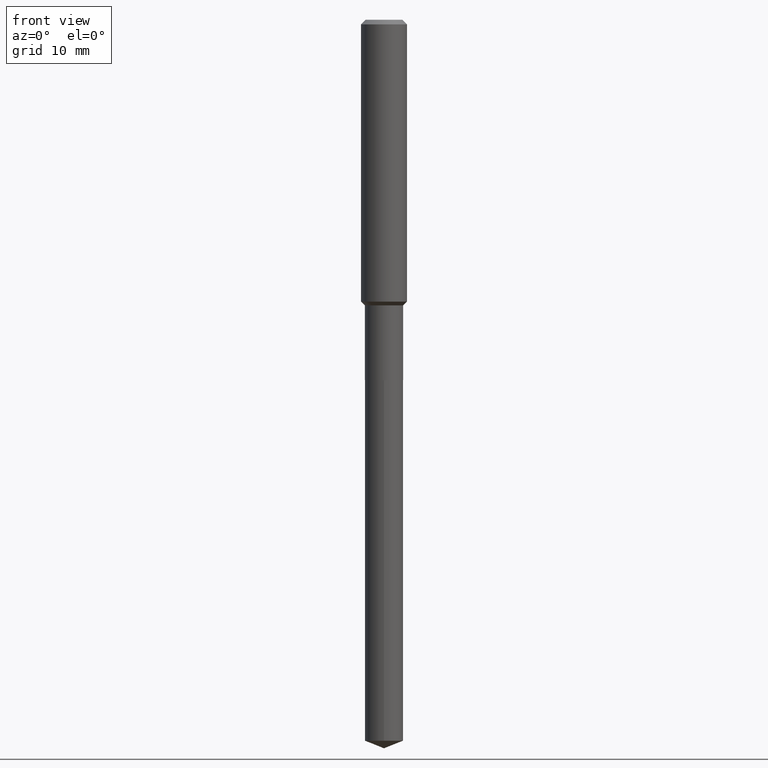
[diagram: clean part render]
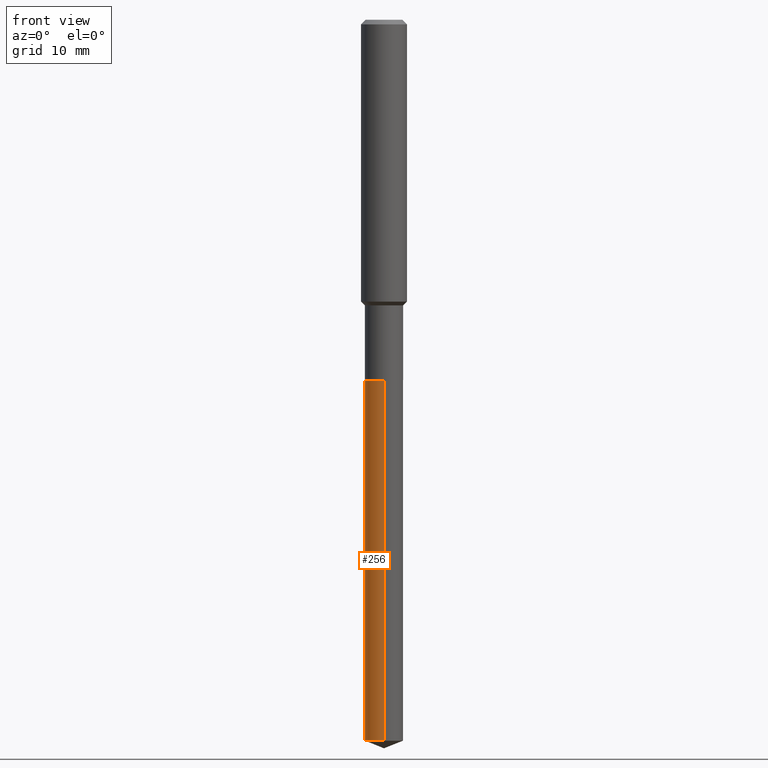
[diagram: same view with one face highlighted and labeled with its STEP entity id]
A machine part, front view. The second image highlights one B-rep face of the part: STEP entity #256.
In plain terms, the highlighted cylindrical surface (edge-blend (fillet) strip) has radius 2.5006 mm, axis along (-0, 0, 1).
Its self-contained STEP definition (entity closure, byte-faithful):
#8 = CARTESIAN_POINT ( 'NONE',  ( 6.995293233559089281E-16, 0.09844999999998707563, -3.701419513675709982 ) ) ;
#12 = AXIS2_PLACEMENT_3D ( 'NONE', #82, #387, #429 ) ;
#27 = ORIENTED_EDGE ( 'NONE', *, *, #304, .T. ) ;
#38 = LINE ( 'NONE', #426, #337 ) ;
#45 = CARTESIAN_POINT ( 'NONE',  ( 4.525095478964977394E-29, -6.460637069395357576E-15, -1.850400000000000267 ) ) ;
#60 = EDGE_CURVE ( 'NONE', #134, #159, #38, .T. ) ;
#82 = CARTESIAN_POINT ( 'NONE',  ( 9.051727677282155315E-29, -1.292340605784048441E-14, -3.701419513675709094 ) ) ;
#85 = DIRECTION ( 'NONE',  ( -6.982962677686265922E-15, -1.000000000000000000, 2.774858297271979165E-15 ) ) ;
#90 = CARTESIAN_POINT ( 'NONE',  ( -6.874726756181675950E-16, -0.09845000000000644902, -1.850400000000000045 ) ) ;
#92 = ORIENTED_EDGE ( 'NONE', *, *, #60, .F. ) ;
#95 = ORIENTED_EDGE ( 'NONE', *, *, #354, .F. ) ;
#96 = CIRCLE ( 'NONE', #12, 0.09844999999999999585 ) ;
#109 = DIRECTION ( 'NONE',  ( -2.445480539169630025E-29, 3.491464536541551464E-15, 1.000000000000000000 ) ) ;
#128 = EDGE_LOOP ( 'NONE', ( #92, #27, #388, #95 ) ) ;
#134 = VERTEX_POINT ( 'NONE', #8 ) ;
#152 = CIRCLE ( 'NONE', #258, 0.09844999999999999585 ) ;
#159 = VERTEX_POINT ( 'NONE', #460 ) ;
#190 = DIRECTION ( 'NONE',  ( -6.982962677686265922E-15, -1.000000000000000000, 2.774858297271979165E-15 ) ) ;
#204 = CARTESIAN_POINT ( 'NONE',  ( -6.874726756181222355E-16, -0.09845000000001290219, -3.701419513675708650 ) ) ;
#209 = VERTEX_POINT ( 'NONE', #382 ) ;
#224 = LINE ( 'NONE', #90, #427 ) ;
#232 = CYLINDRICAL_SURFACE ( 'NONE', #402, 0.09844999999999999585 ) ;
#256 = ADVANCED_FACE ( 'NONE', ( #439 ), #232, .T. ) ;
#258 = AXIS2_PLACEMENT_3D ( 'NONE', #434, #392, #190 ) ;
#263 = EDGE_CURVE ( 'NONE', #431, #209, #224, .T. ) ;
#304 = EDGE_CURVE ( 'NONE', #134, #431, #96, .T. ) ;
#315 = DIRECTION ( 'NONE',  ( -2.445480539169629745E-29, 3.491464536541551464E-15, 1.000000000000000000 ) ) ;
#337 = VECTOR ( 'NONE', #109, 39.37007874015748143 ) ;
#354 = EDGE_CURVE ( 'NONE', #159, #209, #152, .T. ) ;
#382 = CARTESIAN_POINT ( 'NONE',  ( -6.874726756181675950E-16, -0.09845000000000644902, -1.850400000000000045 ) ) ;
#387 = DIRECTION ( 'NONE',  ( -2.445480539169629745E-29, 3.491464536541551464E-15, 1.000000000000000000 ) ) ;
#388 = ORIENTED_EDGE ( 'NONE', *, *, #263, .T. ) ;
#392 = DIRECTION ( 'NONE',  ( -2.445480539169629745E-29, 3.491464536541551464E-15, 1.000000000000000000 ) ) ;
#402 = AXIS2_PLACEMENT_3D ( 'NONE', #45, #315, #85 ) ;
#426 = CARTESIAN_POINT ( 'NONE',  ( 6.995293233558637658E-16, 0.09844999999999354268, -1.850400000000000489 ) ) ;
#427 = VECTOR ( 'NONE', #474, 39.37007874015748143 ) ;
#429 = DIRECTION ( 'NONE',  ( -6.982962677686265922E-15, -1.000000000000000000, 5.549716594543958330E-15 ) ) ;
#431 = VERTEX_POINT ( 'NONE', #204 ) ;
#434 = CARTESIAN_POINT ( 'NONE',  ( 4.525095478964977394E-29, -6.460637069395357576E-15, -1.850400000000000267 ) ) ;
#439 = FACE_OUTER_BOUND ( 'NONE', #128, .T. ) ;
#460 = CARTESIAN_POINT ( 'NONE',  ( 6.995293233559093225E-16, 0.09844999999999354268, -1.850400000000000489 ) ) ;
#474 = DIRECTION ( 'NONE',  ( -2.445480539169630025E-29, 3.491464536541551464E-15, 1.000000000000000000 ) ) ;